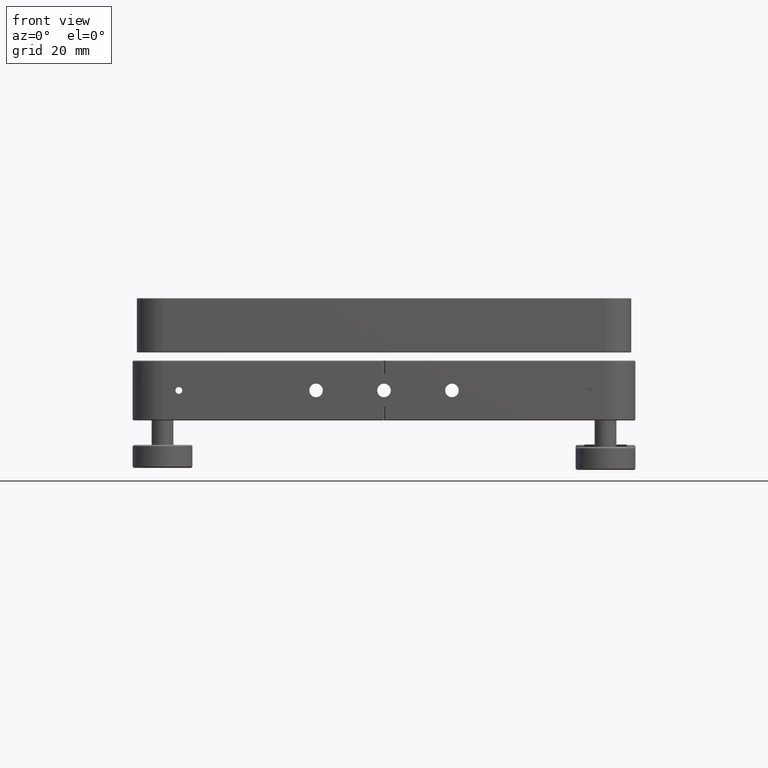
[diagram: clean part render]
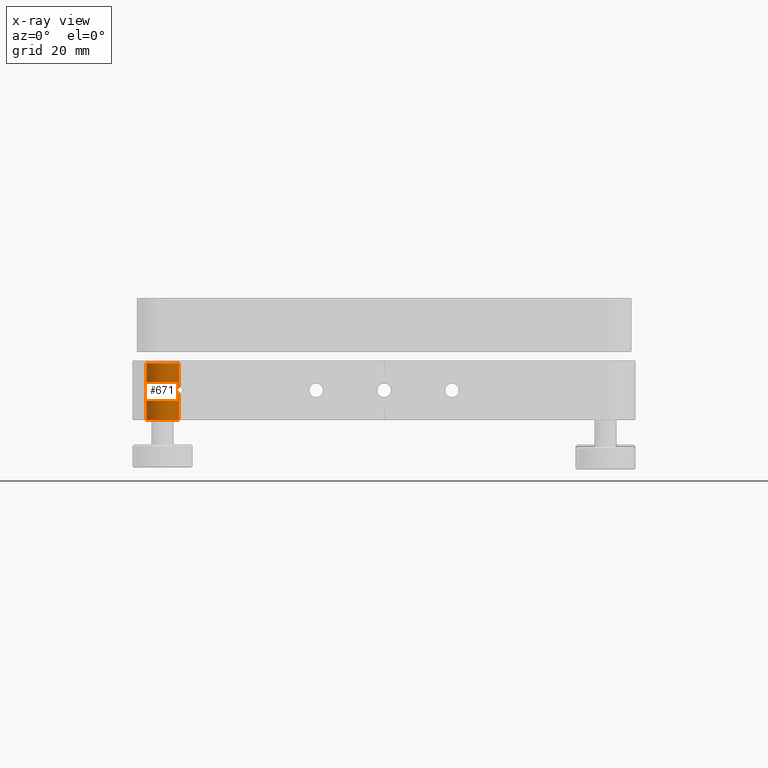
[diagram: x-ray — body ghosted, one internal face saturated and labeled with its STEP entity id]
A machine part, front view, then the same camera in x-ray: the body is ghosted and one INTERNAL B-rep face — a face not visible from any outside direction — is saturated and labeled: STEP entity #671.
In plain terms, the highlighted cylindrical surface (edge-blend (fillet) strip) has radius 6 mm, axis along (0, 0, -1).
Its self-contained STEP definition (entity closure, byte-faithful):
#34 = CARTESIAN_POINT ( 'NONE',  ( -75.67388054020698007, -82.98229461074424762, -1.239818954150712749 ) ) ;
#671 = ADVANCED_FACE ( 'NONE', ( #7087 ), #5242, .F. ) ;
#715 = CARTESIAN_POINT ( 'NONE',  ( -81.50000000000000000, -81.50000000000000000, -11.00000000000000000 ) ) ;
#1036 = CARTESIAN_POINT ( 'NONE',  ( -75.50000000000000000, -81.87208755273802296, -1.249999999999978462 ) ) ;
#1037 = CARTESIAN_POINT ( 'NONE',  ( -87.50000000000001421, -81.50000000000000000, 11.00000000000000000 ) ) ;
#1076 = EDGE_CURVE ( 'NONE', #12276, #8375, #2478, .T. ) ;
#1090 = CARTESIAN_POINT ( 'NONE',  ( -76.21895924763725816, -84.35371891259025290, 1.026935434275249026 ) ) ;
#1127 = DIRECTION ( 'NONE',  ( 0.000000000000000000, 0.000000000000000000, -1.000000000000000000 ) ) ;
#1135 = LINE ( 'NONE', #4175, #4942 ) ;
#1154 = CARTESIAN_POINT ( 'NONE',  ( -75.98037583297171693, -83.85972136027542945, -1.156238347827431845 ) ) ;
#1615 = VERTEX_POINT ( 'NONE', #12548 ) ;
#1944 = CARTESIAN_POINT ( 'NONE',  ( -76.73893025143181035, -85.15148222393668220, 0.1891000480909394155 ) ) ;
#2011 = CARTESIAN_POINT ( 'NONE',  ( -75.50000000000000000, -81.50000000000000000, -1.249999999999978462 ) ) ;
#2045 = AXIS2_PLACEMENT_3D ( 'NONE', #715, #3553, #4812 ) ;
#2084 = CARTESIAN_POINT ( 'NONE',  ( -76.69871689911346380, -85.09844246412221480, 0.3657660343453550955 ) ) ;
#2147 = CARTESIAN_POINT ( 'NONE',  ( -75.53496323141085611, -82.24689926172729315, 1.251447295280068150 ) ) ;
#2232 = CARTESIAN_POINT ( 'NONE',  ( -87.50000000000001421, -81.50000000000000000, 9.999999999999998224 ) ) ;
#2478 = CIRCLE ( 'NONE', #2045, 6.000000000000005329 ) ;
#2877 = CARTESIAN_POINT ( 'NONE',  ( -81.50000000000000000, -81.50000000000000000, 9.999999999999998224 ) ) ;
#2955 = CARTESIAN_POINT ( 'NONE',  ( -76.30534809327963330, -84.50718958324587504, 0.9640636916496325703 ) ) ;
#3077 = CARTESIAN_POINT ( 'NONE',  ( -76.05575058433707625, -84.02848795928423442, 1.123672583069571296 ) ) ;
#3553 = DIRECTION ( 'NONE',  ( 0.000000000000000000, 0.000000000000000000, 1.000000000000000000 ) ) ;
#3867 = ORIENTED_EDGE ( 'NONE', *, *, #1076, .F. ) ;
#4059 = CARTESIAN_POINT ( 'NONE',  ( -75.77719295186625459, -83.34054960904694553, -1.227296337074172516 ) ) ;
#4120 = DIRECTION ( 'NONE',  ( 0.000000000000000000, 0.000000000000000000, -1.000000000000000000 ) ) ;
#4175 = CARTESIAN_POINT ( 'NONE',  ( -75.50000000000000000, -81.50000000000000000, 11.00000000000000000 ) ) ;
#4195 = CARTESIAN_POINT ( 'NONE',  ( -76.30736368394865110, -84.51059484193423543, -0.9622833091255424964 ) ) ;
#4392 = CIRCLE ( 'NONE', #7131, 6.000000000000005329 ) ;
#4812 = DIRECTION ( 'NONE',  ( 1.000000000000000000, 0.000000000000000000, 0.000000000000000000 ) ) ;
#4926 = CARTESIAN_POINT ( 'NONE',  ( -76.75002075002156232, -85.16574646230907319, -0.09364081140571101081 ) ) ;
#4942 = VECTOR ( 'NONE', #5370, 1000.000000000000000 ) ;
#4946 = EDGE_CURVE ( 'NONE', #1615, #12621, #4392, .T. ) ;
#4989 = CARTESIAN_POINT ( 'NONE',  ( -76.21925988660461826, -84.35423614201064879, -1.026701487407275959 ) ) ;
#5120 = CARTESIAN_POINT ( 'NONE',  ( -75.53457491081387332, -82.24469374787837239, -1.251475152320753903 ) ) ;
#5154 = VERTEX_POINT ( 'NONE', #10449 ) ;
#5242 = CYLINDRICAL_SURFACE ( 'NONE', #10255, 6.000000000000005329 ) ;
#5332 = B_SPLINE_CURVE_WITH_KNOTS ( 'NONE', 3,
 ( #2011, #1036, #5120, #34, #4059, #1154, #7099, #4989, #4195, #8076, #10123, #12097, #11122, #8207, #4926, #6974, #1944, #2084, #9985, #8992, #7955, #2955, #1090, #3077, #8924, #7166, #11178, #2147, #6182, #10187 ),
 .UNSPECIFIED., .F., .F.,
 ( 4, 2, 2, 2, 2, 2, 2, 2, 2, 2, 2, 2, 2, 2, 4 ),
 ( 0.008911639183236222048, 0.01002717989214946606, 0.01114272060106271181, 0.01170049095551935377, 0.01225826130997599572, 0.01281603166443263594, 0.01309491684166096820, 0.01337380201888929872, 0.01365268719611762924, 0.01393157237334595976, 0.01448934272780260865, 0.01504711308225925581, 0.01560488343671590124, 0.01672042414562919729, 0.01783596485454249161 ),
 .UNSPECIFIED. ) ;
#5370 = DIRECTION ( 'NONE',  ( 0.000000000000000000, 0.000000000000000000, -1.000000000000000000 ) ) ;
#5661 = DIRECTION ( 'NONE',  ( -1.000000000000000000, 0.000000000000000000, 0.000000000000000000 ) ) ;
#5688 = CARTESIAN_POINT ( 'NONE',  ( -87.50000000000001421, -81.50000000000000000, -11.00000000000000000 ) ) ;
#5940 = EDGE_CURVE ( 'NONE', #12621, #12276, #7635, .T. ) ;
#6035 = ORIENTED_EDGE ( 'NONE', *, *, #11378, .F. ) ;
#6182 = CARTESIAN_POINT ( 'NONE',  ( -75.50000000000000000, -81.87722280741492398, 1.249999999999996003 ) ) ;
#6974 = CARTESIAN_POINT ( 'NONE',  ( -76.74997918878069925, -85.16569260769921357, 0.09419397358809489251 ) ) ;
#7087 = FACE_OUTER_BOUND ( 'NONE', #8725, .T. ) ;
#7099 = CARTESIAN_POINT ( 'NONE',  ( -76.05653637369822206, -84.03013514435743048, -1.123262210471630773 ) ) ;
#7131 = AXIS2_PLACEMENT_3D ( 'NONE', #2877, #10660, #5661 ) ;
#7166 = CARTESIAN_POINT ( 'NONE',  ( -75.77827534494777240, -83.34347132176473849, 1.226960921432013185 ) ) ;
#7635 = LINE ( 'NONE', #1037, #9437 ) ;
#7955 = CARTESIAN_POINT ( 'NONE',  ( -76.47970232257824819, -84.79001654276233069, 0.7862491412021088699 ) ) ;
#7989 = LINE ( 'NONE', #12927, #11219 ) ;
#8076 = CARTESIAN_POINT ( 'NONE',  ( -76.48043056833529363, -84.79106000154261835, -0.7852268371970174687 ) ) ;
#8207 = CARTESIAN_POINT ( 'NONE',  ( -76.73904852258041842, -85.15163468436132632, -0.1882363272893803896 ) ) ;
#8254 = DIRECTION ( 'NONE',  ( 0.000000000000000000, 0.000000000000000000, -1.000000000000000000 ) ) ;
#8375 = VERTEX_POINT ( 'NONE', #12600 ) ;
#8518 = ORIENTED_EDGE ( 'NONE', *, *, #9781, .T. ) ;
#8725 = EDGE_LOOP ( 'NONE', ( #8843, #10868, #6035, #8518, #3867, #8916 ) ) ;
#8843 = ORIENTED_EDGE ( 'NONE', *, *, #4946, .F. ) ;
#8916 = ORIENTED_EDGE ( 'NONE', *, *, #5940, .F. ) ;
#8924 = CARTESIAN_POINT ( 'NONE',  ( -75.98034002688586952, -83.85955158172100710, 1.156229227339044874 ) ) ;
#8992 = CARTESIAN_POINT ( 'NONE',  ( -76.56692101718324750, -84.91736966289877842, 0.6715494270199056093 ) ) ;
#9437 = VECTOR ( 'NONE', #4120, 1000.000000000000000 ) ;
#9781 = EDGE_CURVE ( 'NONE', #10432, #8375, #7989, .T. ) ;
#9985 = CARTESIAN_POINT ( 'NONE',  ( -76.66963316155839436, -85.05963159919473071, 0.4485064546274120656 ) ) ;
#10123 = CARTESIAN_POINT ( 'NONE',  ( -76.56789507933370942, -84.91875351436544861, -0.6698929475544622703 ) ) ;
#10187 = CARTESIAN_POINT ( 'NONE',  ( -75.50000000000000000, -81.49999999999998579, 1.249999999999996003 ) ) ;
#10240 = CARTESIAN_POINT ( 'NONE',  ( -81.50000000000000000, -81.50000000000000000, 11.00000000000000000 ) ) ;
#10255 = AXIS2_PLACEMENT_3D ( 'NONE', #10240, #8254, #10562 ) ;
#10432 = VERTEX_POINT ( 'NONE', #11241 ) ;
#10449 = CARTESIAN_POINT ( 'NONE',  ( -75.50000000000000000, -81.49999999999998579, 1.249999999999996003 ) ) ;
#10562 = DIRECTION ( 'NONE',  ( -1.000000000000000000, 0.000000000000000000, 0.000000000000000000 ) ) ;
#10660 = DIRECTION ( 'NONE',  ( 0.000000000000000000, 0.000000000000000000, -1.000000000000000000 ) ) ;
#10868 = ORIENTED_EDGE ( 'NONE', *, *, #11711, .T. ) ;
#11122 = CARTESIAN_POINT ( 'NONE',  ( -76.69906380799831425, -85.09890351617033843, -0.3645821451588496798 ) ) ;
#11178 = CARTESIAN_POINT ( 'NONE',  ( -75.67365767580335500, -82.98096498238953700, 1.239832961349658369 ) ) ;
#11219 = VECTOR ( 'NONE', #1127, 1000.000000000000000 ) ;
#11241 = CARTESIAN_POINT ( 'NONE',  ( -75.50000000000000000, -81.50000000000000000, -1.249999999999978462 ) ) ;
#11378 = EDGE_CURVE ( 'NONE', #10432, #5154, #5332, .T. ) ;
#11711 = EDGE_CURVE ( 'NONE', #1615, #5154, #1135, .T. ) ;
#12097 = CARTESIAN_POINT ( 'NONE',  ( -76.67007084668591688, -85.06022021918290932, -0.4473235173202095294 ) ) ;
#12276 = VERTEX_POINT ( 'NONE', #5688 ) ;
#12548 = CARTESIAN_POINT ( 'NONE',  ( -75.50000000000000000, -81.50000000000000000, 9.999999999999998224 ) ) ;
#12600 = CARTESIAN_POINT ( 'NONE',  ( -75.50000000000000000, -81.50000000000000000, -11.00000000000000000 ) ) ;
#12621 = VERTEX_POINT ( 'NONE', #2232 ) ;
#12927 = CARTESIAN_POINT ( 'NONE',  ( -75.50000000000000000, -81.50000000000000000, 11.00000000000000000 ) ) ;